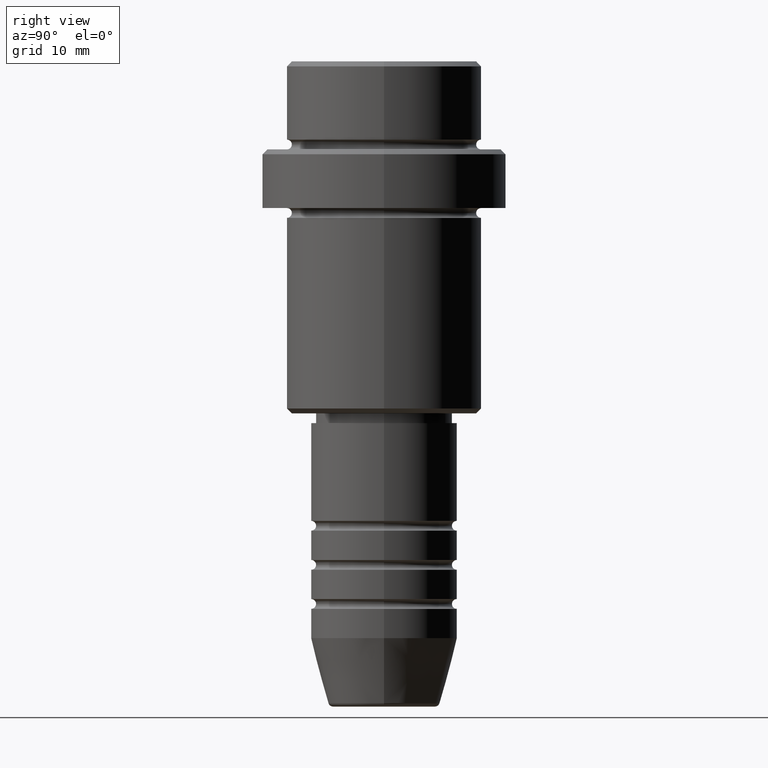
[diagram: clean part render]
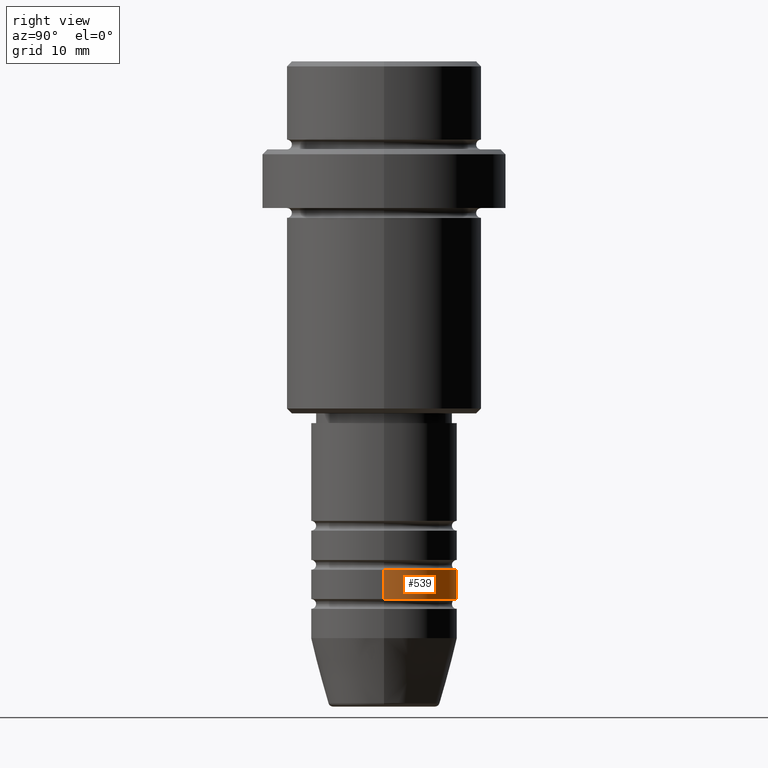
[diagram: same view with one face highlighted and labeled with its STEP entity id]
A machine part, right view. The second image highlights one B-rep face of the part: STEP entity #539.
In plain terms, the highlighted cylindrical surface (partial cylindrical patch) has radius 7.5 mm, axis along (-0, -0, 1).
Its self-contained STEP definition (entity closure, byte-faithful):
#1 = VERTEX_POINT ( 'NONE', #1411 ) ;
#20 = DIRECTION ( 'NONE',  ( 1.000000000000000000, 0.000000000000000000, 0.000000000000000000 ) ) ;
#98 = VECTOR ( 'NONE', #1393, 1000.000000000000000 ) ;
#142 = EDGE_LOOP ( 'NONE', ( #1183, #538, #700, #386 ) ) ;
#251 = CARTESIAN_POINT ( 'NONE',  ( 7.500000000000000000, 0.000000000000000000, 0.000000000000000000 ) ) ;
#359 = CARTESIAN_POINT ( 'NONE',  ( 7.500000000000000000, 0.000000000000000000, -51.99999999999987921 ) ) ;
#386 = ORIENTED_EDGE ( 'NONE', *, *, #981, .F. ) ;
#456 = EDGE_CURVE ( 'NONE', #717, #1051, #848, .T. ) ;
#466 = DIRECTION ( 'NONE',  ( -0.000000000000000000, -0.000000000000000000, 1.000000000000000000 ) ) ;
#523 = CARTESIAN_POINT ( 'NONE',  ( -7.500000000000000000, 9.184850993605147944E-16, 0.000000000000000000 ) ) ;
#538 = ORIENTED_EDGE ( 'NONE', *, *, #456, .T. ) ;
#539 = ADVANCED_FACE ( 'NONE', ( #984 ), #771, .T. ) ;
#556 = EDGE_CURVE ( 'NONE', #1, #717, #665, .T. ) ;
#557 = DIRECTION ( 'NONE',  ( 1.000000000000000000, 0.000000000000000000, 0.000000000000000000 ) ) ;
#581 = EDGE_CURVE ( 'NONE', #959, #1051, #894, .T. ) ;
#594 = DIRECTION ( 'NONE',  ( -0.000000000000000000, -0.000000000000000000, 1.000000000000000000 ) ) ;
#665 = CIRCLE ( 'NONE', #1080, 7.500000000000000000 ) ;
#676 = DIRECTION ( 'NONE',  ( -0.000000000000000000, -0.000000000000000000, 1.000000000000000000 ) ) ;
#681 = CARTESIAN_POINT ( 'NONE',  ( 0.000000000000000000, 0.000000000000000000, -51.99999999999987921 ) ) ;
#700 = ORIENTED_EDGE ( 'NONE', *, *, #581, .F. ) ;
#717 = VERTEX_POINT ( 'NONE', #899 ) ;
#736 = VECTOR ( 'NONE', #594, 1000.000000000000000 ) ;
#771 = CYLINDRICAL_SURFACE ( 'NONE', #779, 7.500000000000000000 ) ;
#779 = AXIS2_PLACEMENT_3D ( 'NONE', #1203, #676, #557 ) ;
#848 = LINE ( 'NONE', #523, #98 ) ;
#886 = CARTESIAN_POINT ( 'NONE',  ( -7.500000000000000000, 9.184850993605147944E-16, -51.99999999999987921 ) ) ;
#894 = CIRCLE ( 'NONE', #1009, 7.500000000000000000 ) ;
#899 = CARTESIAN_POINT ( 'NONE',  ( -7.500000000000000000, 9.184850993605147944E-16, -54.99999999999987921 ) ) ;
#959 = VERTEX_POINT ( 'NONE', #359 ) ;
#981 = EDGE_CURVE ( 'NONE', #1, #959, #1235, .T. ) ;
#984 = FACE_OUTER_BOUND ( 'NONE', #142, .T. ) ;
#1004 = DIRECTION ( 'NONE',  ( -0.000000000000000000, -0.000000000000000000, 1.000000000000000000 ) ) ;
#1009 = AXIS2_PLACEMENT_3D ( 'NONE', #681, #466, #1117 ) ;
#1051 = VERTEX_POINT ( 'NONE', #886 ) ;
#1080 = AXIS2_PLACEMENT_3D ( 'NONE', #1313, #1004, #20 ) ;
#1117 = DIRECTION ( 'NONE',  ( 1.000000000000000000, 0.000000000000000000, 0.000000000000000000 ) ) ;
#1183 = ORIENTED_EDGE ( 'NONE', *, *, #556, .T. ) ;
#1203 = CARTESIAN_POINT ( 'NONE',  ( 0.000000000000000000, 0.000000000000000000, 0.000000000000000000 ) ) ;
#1235 = LINE ( 'NONE', #251, #736 ) ;
#1313 = CARTESIAN_POINT ( 'NONE',  ( 0.000000000000000000, 0.000000000000000000, -54.99999999999987921 ) ) ;
#1393 = DIRECTION ( 'NONE',  ( -0.000000000000000000, -0.000000000000000000, 1.000000000000000000 ) ) ;
#1411 = CARTESIAN_POINT ( 'NONE',  ( 7.500000000000000000, 0.000000000000000000, -54.99999999999987921 ) ) ;